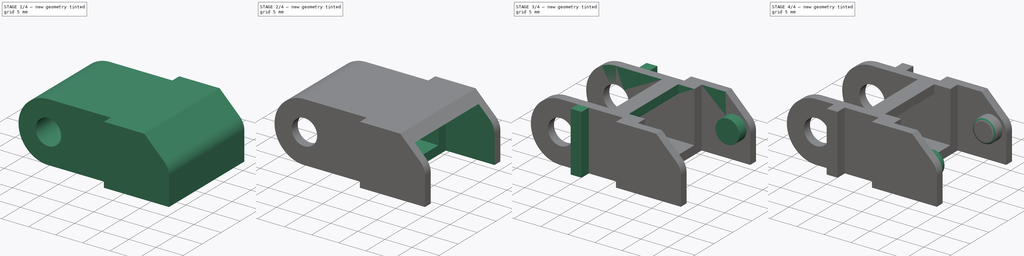
[diagram: build sequence overview — one tinted view per stage of 4, left to right]
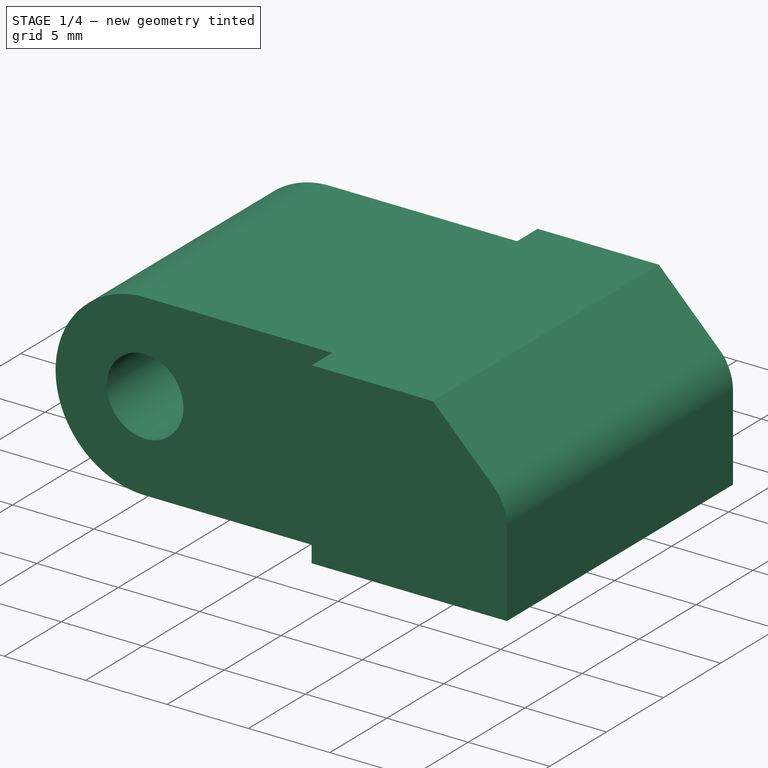
[diagram: stage 1 of 4 — iso view after this stage's code; geometry added in this stage tinted green]
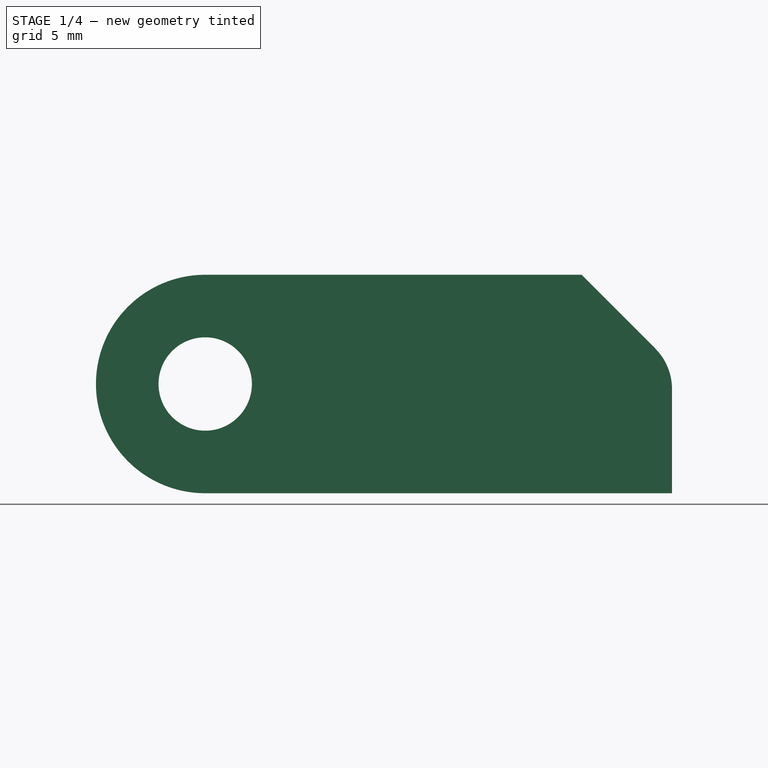
[diagram: stage 1 of 4 — front view after this stage's code; geometry added in this stage tinted green]
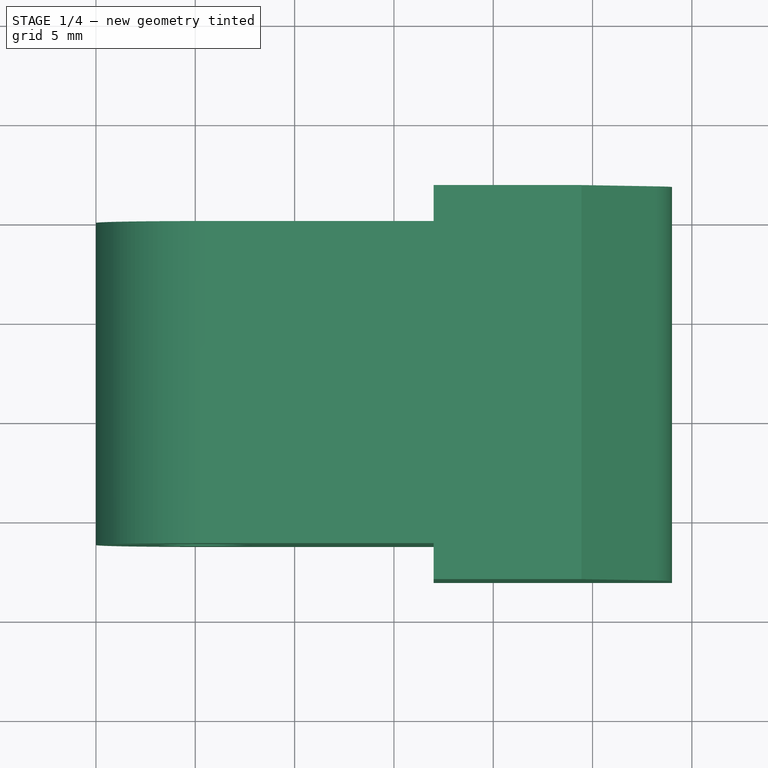
[diagram: stage 1 of 4 — top view after this stage's code; geometry added in this stage tinted green]
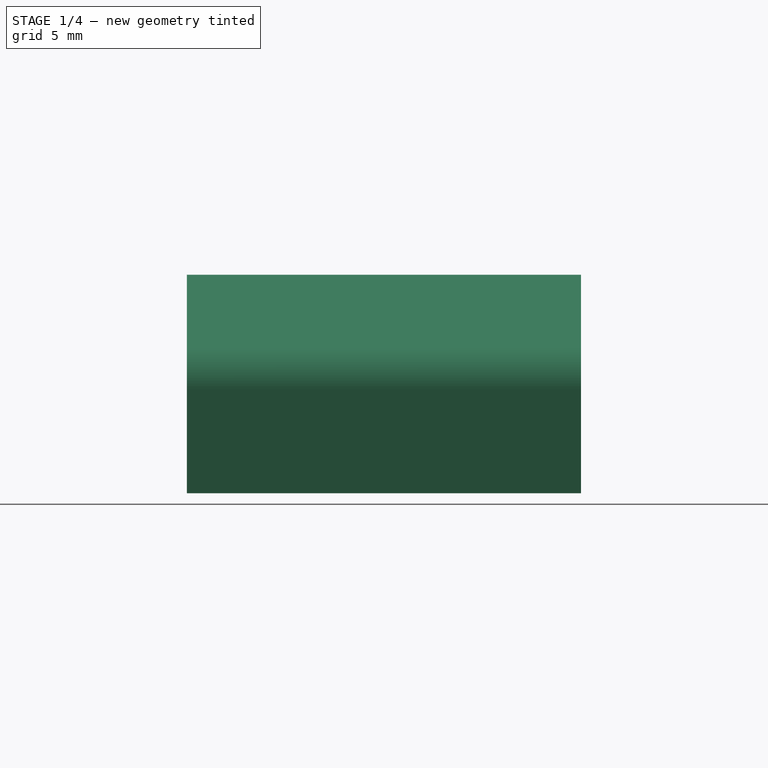
[diagram: stage 1 of 4 — right view after this stage's code; geometry added in this stage tinted green]
FCSTD DOCUMENT  (FreeCAD 0.17R13528 (Git))
Label: CableChain3
License: All rights reserved
LicenseURL: http://en.wikipedia.org/wiki/All_rights_reserved
objects: Sketcher::SketchObject×8, PartDesign::Pad×5, PartDesign::Pocket×3, Spreadsheet::Sheet×1, PartDesign::Fillet×1, PartDesign::Body×1, App::Part×1
note: 26 computed .brp shape members not serialized (recipe doc carries the construction recipe); baked Part::Feature solids carry a one-line shape summary decoded from their .brp

FEATURE [Spreadsheet::Sheet] Spreadsheet
  cells = B2=MainBodyLength; C2(MainBodyLength)==20mm; B3=Height; C3(Height)==11mm; B4=ChannelWidth; C4(ChannelWidth)==13mm; B5=WallThickness; C5(WallThickness)==1.6100000000000001mm; B6=HingeRadius; C6(HingeRadius)==2.2000000000000002mm; B7=GrooveFiletRadius; C7(GrooveFiletRadius)==0.59999999999999998mm; B8=HingeOverlap; C8(HingeOverlap)==3mm; B9=Tolerance; C9(Tolerance)==0.29999999999999999mm; B10=Separation; C10(Separation)==0.20000000000000001mm; B11=HingeBlockDistance; C11(HingeBlockDistance)==1mm; B12=LowerBridgeWidth; C12(LowerBridgeWidth)==6mm; B13=UpperBridgeWidth; C13(UpperBridgeWidth)==3mm; B15=HingeBlockOffset; C15(HingeBlockOffset)==HingeRadius + HingeBlockDistance
FEATURE [Sketcher::SketchObject] Sketch  label="MainBody"
  MapMode = 5
  Placement = pos=(0,0,0) rot=(1,0,0;1.5708rad)
  expr: Constraints[17] = Spreadsheet.HingeRadius + Spreadsheet.Tolerance / 2
  expr: Constraints[14] = Spreadsheet.Height
  expr: Constraints.Length = Spreadsheet.MainBodyLength
  sketch-geometry (6):
    g0: LineSegment StartX=20 StartY=0 StartZ=0 EndX=20 EndY=11 EndZ=0
    g1: LineSegment StartX=20 StartY=11 StartZ=0 EndX=5.5 EndY=11 EndZ=0
    g2: LineSegment StartX=20 StartY=0 StartZ=0 EndX=5.5 EndY=0 EndZ=0
    g3: ArcOfCircle CenterX=5.5 CenterY=5.5 CenterZ=0 NormalX=0 NormalY=0 NormalZ=1 AngleXU=0 Radius=5.5 StartAngle=1.5708 EndAngle=4.71239
    g4: LineSegment [constr] StartX=20 StartY=5.5 StartZ=0 EndX=0 EndY=5.5 EndZ=0
    g5: Circle CenterX=5.5 CenterY=5.5 CenterZ=0 NormalX=0 NormalY=0 NormalZ=1 AngleXU=0 Radius=2.35
  constraints (19):
    c: Vertical(g0)
    c: Horizontal(g1)
    c: Coincident(g2,g0)
    c: Horizontal(g2)
    c: Coincident(g3,g1)
    c: Coincident(g3,g2)
    c: PointOnObject(g4,g3)
    c: Horizontal(g4)
    c: DistanceX(g4,g0) = 20  'Length'
    c: PointOnObject(g4,g-2)
    c: PointOnObject(g3,g4)
    c: PointOnObject(g2,g-1)
    c: Tangent(g1,g3)
    c: Tangent(g3,g2)
    c: DistanceY(g2,g1) = 11
    c: PointOnObject(g4,g0)
    c: Coincident(g5,g3)
    c: Radius(g5) = 2.35
    c: Coincident(g1,g0)
FEATURE [PartDesign::Pad] Pad  label="MainBody_"
  Length = 16.22
  Length2 = 100
  Placement = pos=(0,0,0) rot=(1,0,0;1.5708rad)
  Profile = -> Sketch
  Type = 0
  expr: Length = Spreadsheet.ChannelWidth + Spreadsheet.WallThickness * 2
FEATURE [Sketcher::SketchObject] Sketch009  label="GrooveBase"
  MapMode = 5
  Placement = pos=(0,1.81,0) rot=(1,0,0;1.5708rad)
  expr: Constraints[27] = Spreadsheet.Height / 2 + Spreadsheet.Tolerance * 2
  expr: Constraints[24] = Spreadsheet.HingeBlockOffset - Spreadsheet.Tolerance
  expr: Constraints[12] = Spreadsheet.MainBodyLength
  expr: Constraints[16] = Spreadsheet.Height / 2
  expr: Constraints[13] = Spreadsheet.HingeOverlap
  expr: Placement.Base.y = Spreadsheet.WallThickness + Spreadsheet.Separation
  expr: Constraints[4] = Spreadsheet.Height
  sketch-geometry (8):
    g0: LineSegment StartX=17 StartY=0 StartZ=0 EndX=29 EndY=0 EndZ=0
    g1: LineSegment StartX=17 StartY=11 StartZ=0 EndX=17 EndY=0 EndZ=0
    g2: LineSegment StartX=17 StartY=11 StartZ=0 EndX=24.4437 EndY=11 EndZ=0
    g3: LineSegment StartX=24.4437 StartY=11 StartZ=0 EndX=28.1506 EndY=7.29304 EndZ=0
    g4: LineSegment [constr] StartX=20 StartY=11 StartZ=0 EndX=20 EndY=0 EndZ=0
    g5: LineSegment [constr] StartX=0 StartY=5.5 StartZ=0 EndX=29 EndY=5.5 EndZ=0
    g6: LineSegment StartX=29 StartY=0 StartZ=0 EndX=29 EndY=5.24243 EndZ=0
    g7: ArcOfCircle CenterX=26.1 CenterY=5.24243 CenterZ=0 NormalX=0 NormalY=0 NormalZ=1 AngleXU=0 Radius=2.9 StartAngle=0 EndAngle=0.785398
  constraints (28):
    c: Coincident(g1,g0)
    c: Horizontal(g0)
    c: Vertical(g1)
    c: PointOnObject(g0,g-1)
    c: DistanceY(g1,g1) = 11
    c: Coincident(g2,g1)
    c: Horizontal(g2)
    c: Coincident(g3,g2)
    c: DistanceX(g-1,g0) = 29  'TotalLength'
    c: PointOnObject(g4,g2)
    c: PointOnObject(g4,g0)
    c: Vertical(g4)
    c: DistanceX(g-1,g4) = 20
    c: DistanceX(g0,g4) = 3
    c: PointOnObject(g5,g-2)
    c: Horizontal(g5)
    c: DistanceY(g-1,g5) = 5.5
    c: Angle(g3,g5) = 0.785398
    c: Coincident(g6,g0)
    c: Vertical(g6)
    c: Coincident(g7,g3)
    c: Coincident(g7,g6)
    c: Tangent(g6,g7) = -1.5708
    c: Tangent(g3,g7) = 1.5708
    c: Radius(g7) = 2.9
    c: Equal(g6,g3)
    c: PointOnObject(g5,g6)
    c: DistanceX(g4,g7) = 6.1
FEATURE [PartDesign::Pad] Pad001  label="GrooveBasePad"
  BaseFeature = -> Pad
  Length = 19.84
  Length2 = 100
  Placement = pos=(0,0,0) rot=(1,0,0;1.5708rad)
  Profile = -> Sketch009
  Refine = true
  Type = 0
  expr: Length = (Spreadsheet.WallThickness + Spreadsheet.Separation) * 2 + MainBody_.Length
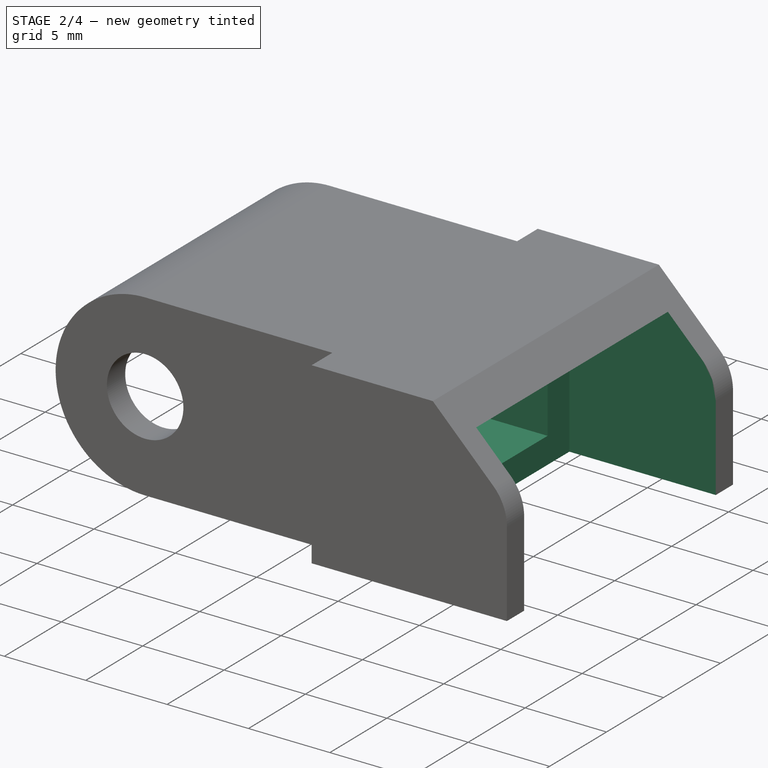
[diagram: stage 2 of 4 — iso view after this stage's code; geometry added in this stage tinted green]
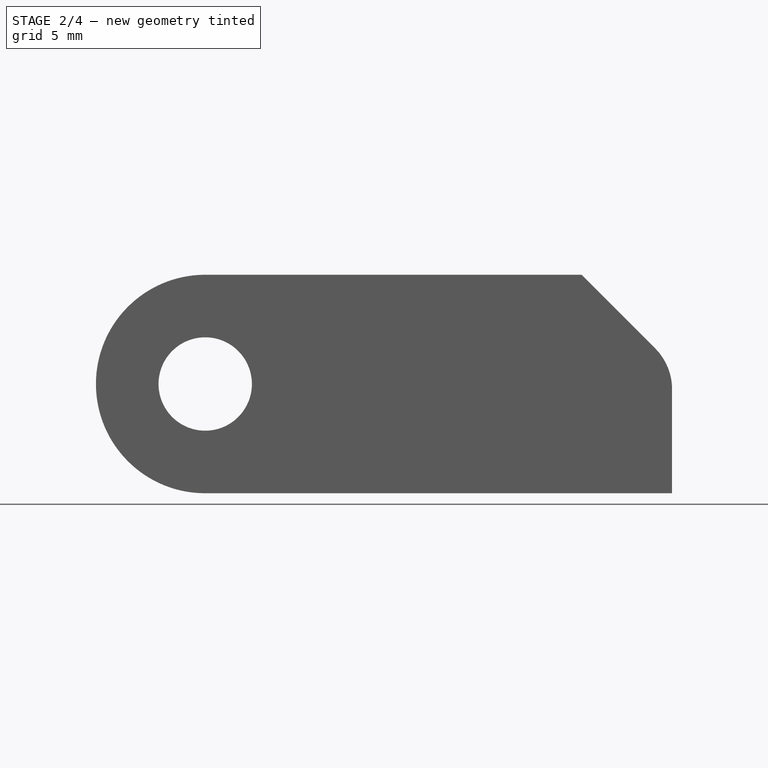
[diagram: stage 2 of 4 — front view after this stage's code; geometry added in this stage tinted green]
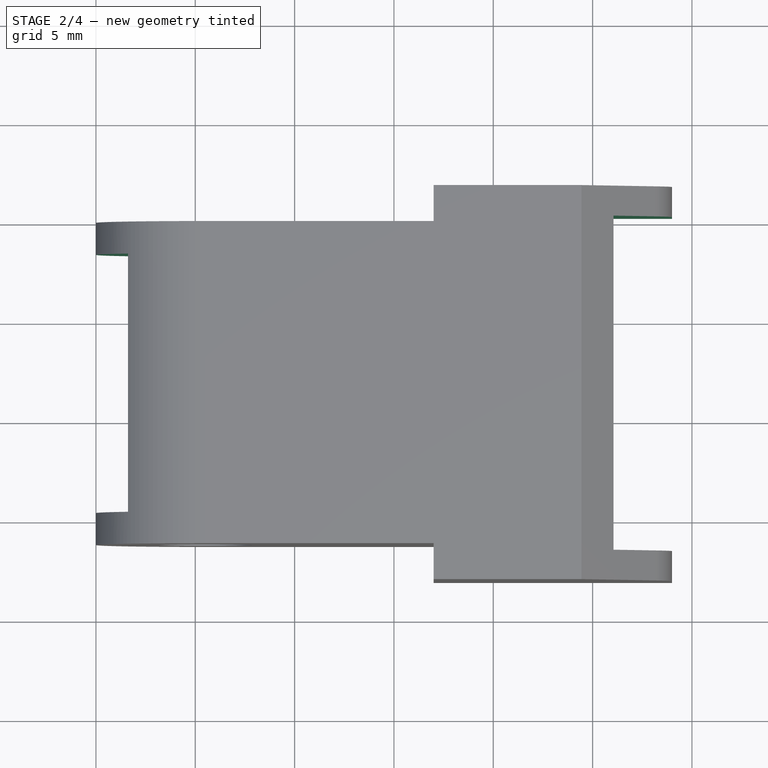
[diagram: stage 2 of 4 — top view after this stage's code; geometry added in this stage tinted green]
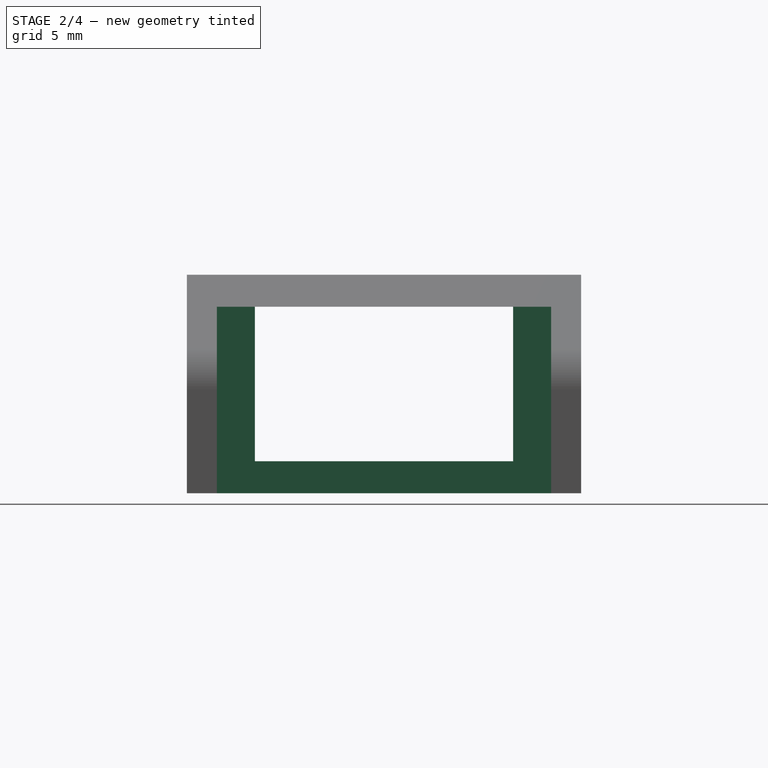
[diagram: stage 2 of 4 — right view after this stage's code; geometry added in this stage tinted green]
FEATURE [Sketcher::SketchObject] Sketch010  label="BottomCut"
  AttachmentOffset = pos=(0,0,1.61) rot=(0,0,1;0rad)
  MapMode = 5
  Placement = pos=(0,0,1.61) rot=(0,0,1;0rad)
  Support = -> [XY_Plane001]
  expr: Constraints[23] = Spreadsheet.Tolerance
  expr: Constraints[32] = Spreadsheet.LowerBridgeWidth
  expr: Constraints[3] = MainBody.Constraints.Length
  expr: Constraints[4] = Spreadsheet.WallThickness
  expr: AttachmentOffset.Base.z = Spreadsheet.WallThickness
  expr: Constraints[16] = Sketch009.Constraints.TotalLength
  expr: Constraints[7] = MainBody_.Length
  sketch-geometry (14):
    g0: LineSegment StartX=20 StartY=-1.61 StartZ=0 EndX=20 EndY=-14.61 EndZ=0
    g1: LineSegment StartX=0 StartY=-14.61 StartZ=0 EndX=0 EndY=-1.61 EndZ=0
    g2: LineSegment [constr] StartX=0 StartY=-16.22 StartZ=0 EndX=20 EndY=-16.22 EndZ=0
    g3: LineSegment [constr] StartX=0 StartY=-8.11 StartZ=0 EndX=29 EndY=-8.11 EndZ=0
    g4: LineSegment StartX=20 StartY=0.3 StartZ=0 EndX=29 EndY=0.3 EndZ=0
    g5: LineSegment StartX=29 StartY=0.3 StartZ=0 EndX=29 EndY=-16.52 EndZ=0
    g6: LineSegment StartX=29 StartY=-16.52 StartZ=0 EndX=20 EndY=-16.52 EndZ=0
    g7: LineSegment StartX=20 StartY=-1.61 StartZ=0 EndX=20 EndY=0.3 EndZ=0
    g8: LineSegment StartX=20 StartY=-16.52 StartZ=0 EndX=20 EndY=-14.61 EndZ=0
    g9: LineSegment [constr] StartX=20 StartY=-1.61 StartZ=0 EndX=14 EndY=-1.61 EndZ=0
    g10: LineSegment StartX=14 StartY=-1.61 StartZ=0 EndX=14 EndY=-14.61 EndZ=0
    g11: LineSegment [constr] StartX=14 StartY=-14.61 StartZ=0 EndX=20 EndY=-14.61 EndZ=0
    g12: LineSegment StartX=0 StartY=-1.61 StartZ=0 EndX=14 EndY=-1.61 EndZ=0
    g13: LineSegment StartX=0 StartY=-14.61 StartZ=0 EndX=14 EndY=-14.61 EndZ=0
  constraints (41):
    c: Vertical(g0)
    c: Vertical(g1)
    c: PointOnObject(g1,g-2)
    c: DistanceX(g1,g0) = 20
    c: DistanceY(g1,g-1) = 1.61
    c: PointOnObject(g2,g-2)
    c: Horizontal(g2)
    c: DistanceY(g2,g-1) = 16.22
    c: PointOnObject(g3,g1)
    c: Symmetric(g2,g-1,g3)
    c: Symmetric(g1,g1,g3)
    c: Coincident(g4,g5)
    c: Coincident(g5,g6)
    c: Horizontal(g4)
    c: Horizontal(g6)
    c: Vertical(g5)
    c: DistanceX(g3,g3) = 29
    c: Coincident(g7,g4)
    c: Vertical(g7)
    c: PointOnObject(g3,g5)
    c: Coincident(g8,g6)
    c: Coincident(g8,g0)
    c: Vertical(g8)
    c: DistanceY(g-1,g4) = 0.3
    c: Equal(g7,g8)
    c: Coincident(g0,g9)
    c: Horizontal(g9)
    c: Coincident(g9,g10)
    c: Vertical(g10)
    c: Coincident(g10,g11)
    c: Coincident(g11,g0)
    c: Horizontal(g11)
    c: DistanceX(g11,g11) = 6
    c: Coincident(g12,g1)
    c: Coincident(g12,g9)
    c: Horizontal(g12)
    c: Coincident(g13,g1)
    c: Coincident(g13,g10)
    c: Horizontal(g13)
    c: Coincident(g0,g7)
    c: PointOnObject(g2,g8)
FEATURE [PartDesign::Pocket] Pocket  label="BottomCut_"
  BaseFeature = -> Pad001
  Length = 5
  Length2 = 100
  Placement = pos=(0,0,0) rot=(1,0,0;1.5708rad)
  Profile = -> Sketch010
  Type = 1
FEATURE [Sketcher::SketchObject] Sketch011  label="MiddleCut"
  AttachmentOffset = pos=(0,0,9.39) rot=(0,0,1;0rad)
  MapMode = 5
  Placement = pos=(0,0,9.39) rot=(0,0,1;0rad)
  Support = -> [XY_Plane001]
  expr: Constraints[23] = Spreadsheet.Tolerance
  expr: Constraints[32] = Spreadsheet.LowerBridgeWidth
  expr: Constraints[3] = MainBody.Constraints.Length
  expr: Constraints[4] = Spreadsheet.WallThickness
  expr: AttachmentOffset.Base.z = Spreadsheet.Height - Spreadsheet.WallThickness
  expr: Constraints[16] = Sketch009.Constraints.TotalLength
  expr: Constraints[7] = MainBody_.Length
  sketch-geometry (14):
    g0: LineSegment [constr] StartX=20 StartY=-1.61 StartZ=0 EndX=20 EndY=-14.61 EndZ=0
    g1: LineSegment StartX=0 StartY=-14.61 StartZ=0 EndX=0 EndY=-1.61 EndZ=0
    g2: LineSegment [constr] StartX=0 StartY=-16.22 StartZ=0 EndX=20 EndY=-16.22 EndZ=0
    g3: LineSegment [constr] StartX=0 StartY=-8.11 StartZ=0 EndX=29 EndY=-8.11 EndZ=0
    g4: LineSegment StartX=20 StartY=0.3 StartZ=0 EndX=29 EndY=0.3 EndZ=0
    g5: LineSegment StartX=29 StartY=0.3 StartZ=0 EndX=29 EndY=-16.52 EndZ=0
    g6: LineSegment StartX=29 StartY=-16.52 StartZ=0 EndX=20 EndY=-16.52 EndZ=0
    g7: LineSegment StartX=20 StartY=-1.61 StartZ=0 EndX=20 EndY=0.3 EndZ=0
    g8: LineSegment StartX=20 StartY=-16.52 StartZ=0 EndX=20 EndY=-14.61 EndZ=0
    g9: LineSegment StartX=20 StartY=-1.61 StartZ=0 EndX=14 EndY=-1.61 EndZ=0
    g10: LineSegment [constr] StartX=14 StartY=-1.61 StartZ=0 EndX=14 EndY=-14.61 EndZ=0
    g11: LineSegment StartX=14 StartY=-14.61 StartZ=0 EndX=20 EndY=-14.61 EndZ=0
    g12: LineSegment StartX=0 StartY=-1.61 StartZ=0 EndX=14 EndY=-1.61 EndZ=0
    g13: LineSegment StartX=0 StartY=-14.61 StartZ=0 EndX=14 EndY=-14.61 EndZ=0
  constraints (42):
    c: Vertical(g0)
    c: Vertical(g1)
    c: PointOnObject(g1,g-2)
    c: DistanceX(g1,g0) = 20
    c: DistanceY(g1,g-1) = 1.61
    c: PointOnObject(g2,g-2)
    c: Horizontal(g2)
    c: DistanceY(g2,g-1) = 16.22
    c: PointOnObject(g3,g1)
    c: Symmetric(g2,g-1,g3)
    c: Symmetric(g1,g1,g3)
    c: Coincident(g4,g5)
    c: Coincident(g5,g6)
    c: Horizontal(g4)
    c: Horizontal(g6)
    c: Vertical(g5)
    c: DistanceX(g3,g3) = 29
    c: Coincident(g7,g4)
    c: Vertical(g7)
    c: PointOnObject(g3,g5)
    c: Coincident(g8,g6)
    c: Coincident(g8,g0)
    c: Vertical(g8)
    c: DistanceY(g-1,g4) = 0.3
    c: Equal(g7,g8)
    c: Coincident(g0,g9)
    c: Horizontal(g9)
    c: Coincident(g9,g10)
    c: Vertical(g10)
    c: Coincident(g10,g11)
    c: Coincident(g11,g0)
    c: Horizontal(g11)
    c: DistanceX(g11,g11) = 6
    c: Coincident(g12,g1)
    c: Coincident(g12,g9)
    c: Horizontal(g12)
    c: Coincident(g13,g1)
    c: Coincident(g13,g10)
    c: Horizontal(g13)
    c: Coincident(g0,g7)
    c: PointOnObject(g2,g8)
    c: DistanceY(g5,g5) = 16.82
FEATURE [PartDesign::Pocket] Pocket001  label="MiddleCut_"
  BaseFeature = -> Pocket
  Length = 7.78
  Length2 = 100
  Placement = pos=(0,0,0) rot=(1,0,0;1.5708rad)
  Profile = -> Sketch011
  Type = 0
  expr: Length = MiddleCut.Placement.Base.z - BottomCut.Placement.Base.z
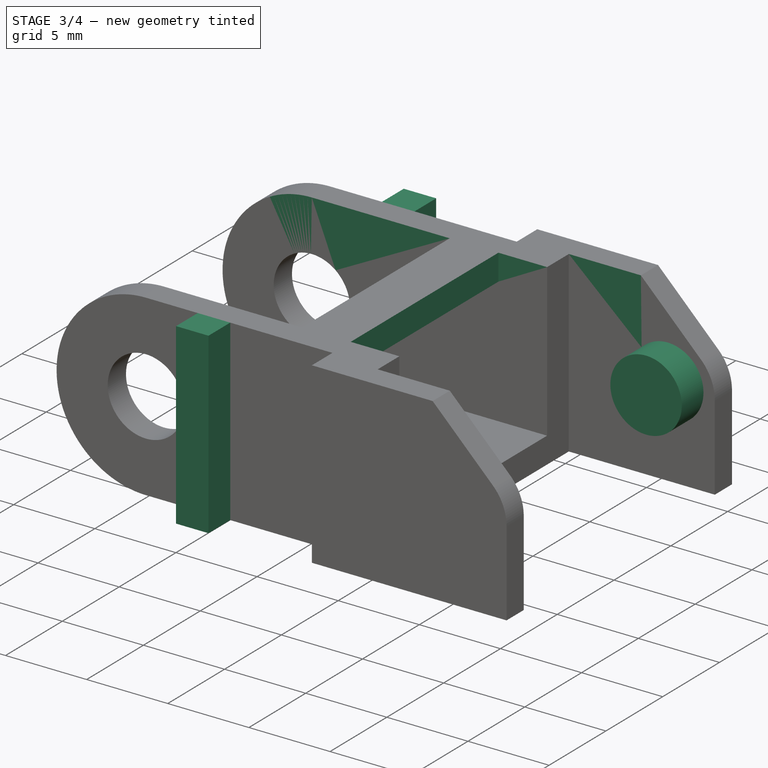
[diagram: stage 3 of 4 — iso view after this stage's code; geometry added in this stage tinted green]
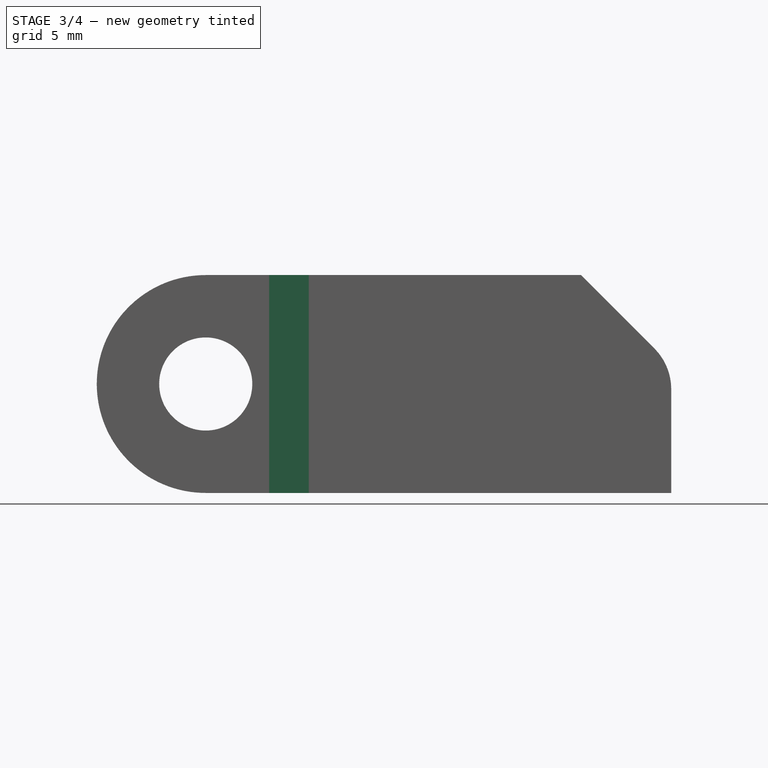
[diagram: stage 3 of 4 — front view after this stage's code; geometry added in this stage tinted green]
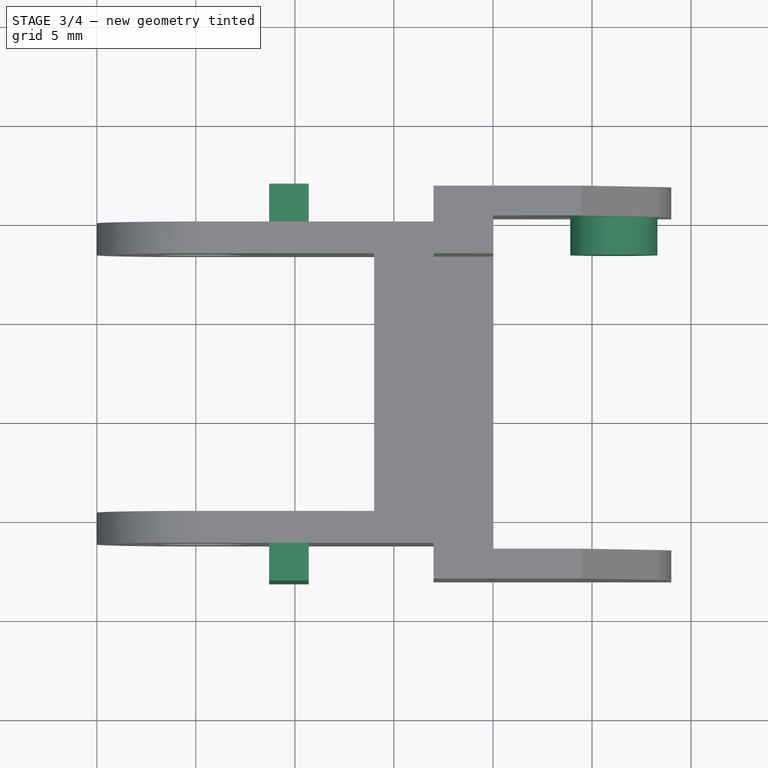
[diagram: stage 3 of 4 — top view after this stage's code; geometry added in this stage tinted green]
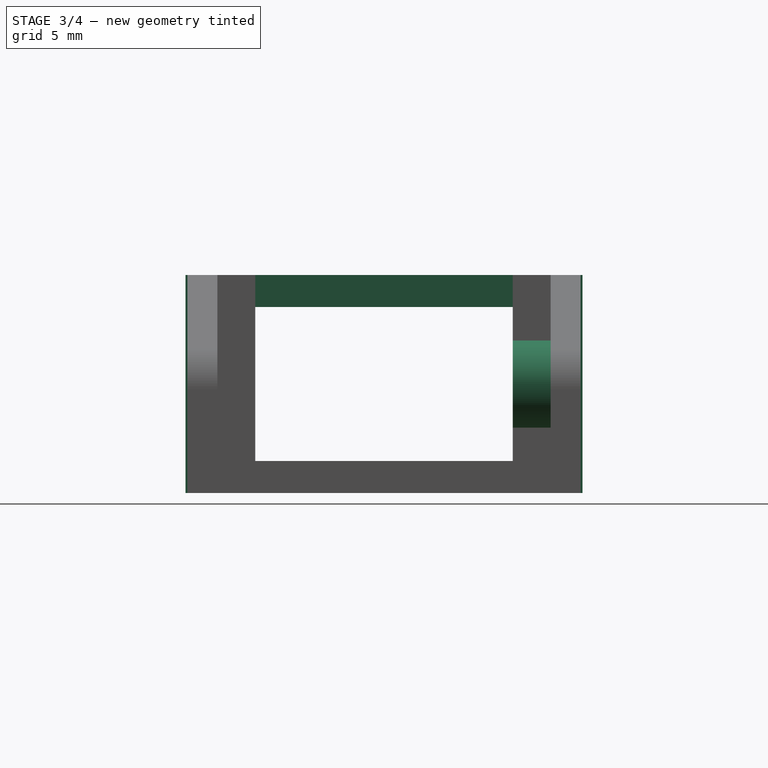
[diagram: stage 3 of 4 — right view after this stage's code; geometry added in this stage tinted green]
FEATURE [Sketcher::SketchObject] Sketch012  label="TopCut"
  AttachmentOffset = pos=(0,0,11) rot=(0,0,1;0rad)
  MapMode = 5
  Placement = pos=(0,0,11) rot=(0,0,1;0rad)
  Support = -> [XY_Plane001]
  expr: Constraints[23] = Spreadsheet.Tolerance
  expr: Constraints[48] = Spreadsheet.UpperBridgeWidth
  expr: AttachmentOffset.Base.z = Spreadsheet.Height
  expr: Constraints[16] = Sketch009.Constraints.TotalLength
  expr: Constraints[3] = MainBody.Constraints.Length
  expr: Constraints[26] = Spreadsheet.LowerBridgeWidth
  expr: Constraints[4] = Spreadsheet.WallThickness
  expr: Constraints[7] = MainBody_.Length
  sketch-geometry (17):
    g0: LineSegment [constr] StartX=20 StartY=-1.61 StartZ=0 EndX=20 EndY=-14.61 EndZ=0
    g1: LineSegment StartX=0 StartY=-14.61 StartZ=0 EndX=0 EndY=-1.61 EndZ=0
    g2: LineSegment [constr] StartX=0 StartY=-16.22 StartZ=0 EndX=20 EndY=-16.22 EndZ=0
    g3: LineSegment [constr] StartX=0 StartY=-8.11 StartZ=0 EndX=29 EndY=-8.11 EndZ=0
    g4: LineSegment StartX=20 StartY=0.3 StartZ=0 EndX=29 EndY=0.3 EndZ=0
    g5: LineSegment StartX=29 StartY=0.3 StartZ=0 EndX=29 EndY=-16.52 EndZ=0
    g6: LineSegment StartX=29 StartY=-16.52 StartZ=0 EndX=20 EndY=-16.52 EndZ=0
    g7: LineSegment StartX=20 StartY=-1.61 StartZ=0 EndX=20 EndY=0.3 EndZ=0
    g8: LineSegment StartX=20 StartY=-16.52 StartZ=0 EndX=20 EndY=-14.61 EndZ=0
    g9: LineSegment StartX=14 StartY=-1.61 StartZ=0 EndX=14 EndY=-14.61 EndZ=0
    g10: LineSegment StartX=0 StartY=-1.61 StartZ=0 EndX=14 EndY=-1.61 EndZ=0
    g11: LineSegment StartX=0 StartY=-14.61 StartZ=0 EndX=14 EndY=-14.61 EndZ=0
    g12: LineSegment StartX=20 StartY=-1.61 StartZ=0 EndX=17 EndY=-1.61 EndZ=0
    g13: LineSegment StartX=17 StartY=-1.61 StartZ=0 EndX=17 EndY=-14.61 EndZ=0
    g14: LineSegment StartX=17 StartY=-14.61 StartZ=0 EndX=20 EndY=-14.61 EndZ=0
    g15: LineSegment [constr] StartX=14 StartY=-1.61 StartZ=0 EndX=17 EndY=-1.61 EndZ=0
    g16: LineSegment [constr] StartX=14 StartY=-14.61 StartZ=0 EndX=17 EndY=-14.61 EndZ=0
  constraints (49):
    c: Vertical(g0)
    c: Vertical(g1)
    c: PointOnObject(g1,g-2)
    c: DistanceX(g1,g0) = 20
    c: DistanceY(g1,g-1) = 1.61
    c: PointOnObject(g2,g-2)
    c: Horizontal(g2)
    c: DistanceY(g2,g-1) = 16.22
    c: PointOnObject(g3,g1)
    c: Symmetric(g2,g-1,g3)
    c: Symmetric(g1,g1,g3)
    c: Coincident(g4,g5)
    c: Coincident(g5,g6)
    c: Horizontal(g4)
    c: Horizontal(g6)
    c: Vertical(g5)
    c: DistanceX(g3,g3) = 29
    c: Coincident(g7,g4)
    c: Vertical(g7)
    c: PointOnObject(g3,g5)
    c: Coincident(g8,g6)
    c: Coincident(g8,g0)
    c: Vertical(g8)
    c: DistanceY(g-1,g4) = 0.3
    c: Equal(g7,g8)
    c: Vertical(g9)
    c: DistanceX(g9,g0) = 6
    c: Coincident(g10,g1)
    c: Horizontal(g10)
    c: Coincident(g11,g1)
    c: Coincident(g11,g9)
    c: Horizontal(g11)
    c: Coincident(g0,g7)
    c: PointOnObject(g2,g8)
    c: Coincident(g0,g12)
    c: Horizontal(g12)
    c: Coincident(g12,g13)
    c: Vertical(g13)
    c: Coincident(g13,g14)
    c: Coincident(g14,g0)
    c: Horizontal(g14)
    c: Coincident(g15,g9)
    c: Coincident(g15,g12)
    c: Horizontal(g15)
    c: Coincident(g16,g9)
    c: Coincident(g16,g13)
    c: Horizontal(g16)
    c: Coincident(g9,g10)
    c: DistanceX(g16,g16) = 3
FEATURE [PartDesign::Pocket] Pocket002  label="TopCut_"
  BaseFeature = -> Pocket001
  Length = 1.61
  Length2 = 100
  Placement = pos=(0,0,0) rot=(1,0,0;1.5708rad)
  Profile = -> Sketch012
  Type = 0
  expr: Length = TopCut.Placement.Base.z - MiddleCut.Placement.Base.z
FEATURE [Sketcher::SketchObject] Sketch013  label="HingeBlock"
  MapMode = 5
  Support = -> [XY_Plane001]
  expr: Constraints[26] = Spreadsheet.WallThickness + Spreadsheet.Tolerance
  expr: Constraints[20] = Sketch009.Constraints.TotalLength
  expr: Constraints[22] = MainBody_.Length / 2
  expr: Constraints[17] = Spreadsheet.Height / 2 + Spreadsheet.HingeBlockOffset
  sketch-geometry (9):
    g0: LineSegment StartX=8.7 StartY=0 StartZ=0 EndX=10.7 EndY=0 EndZ=0
    g1: LineSegment StartX=10.7 StartY=0 StartZ=0 EndX=10.7 EndY=1.91 EndZ=0
    g2: LineSegment StartX=10.7 StartY=1.91 StartZ=0 EndX=8.7 EndY=1.91 EndZ=0
    g3: LineSegment StartX=8.7 StartY=1.91 StartZ=0 EndX=8.7 EndY=0 EndZ=0
    g4: LineSegment StartX=8.7 StartY=-16.22 StartZ=0 EndX=10.7 EndY=-16.22 EndZ=0
    g5: LineSegment StartX=10.7 StartY=-16.22 StartZ=0 EndX=10.7 EndY=-18.13 EndZ=0
    g6: LineSegment StartX=10.7 StartY=-18.13 StartZ=0 EndX=8.7 EndY=-18.13 EndZ=0
    g7: LineSegment StartX=8.7 StartY=-18.13 StartZ=0 EndX=8.7 EndY=-16.22 EndZ=0
    g8: LineSegment [constr] StartX=0 StartY=-8.11 StartZ=0 EndX=29 EndY=-8.11 EndZ=0
  constraints (27):
    c: Coincident(g0,g1)
    c: Coincident(g1,g2)
    c: Coincident(g2,g3)
    c: Coincident(g3,g0)
    c: Horizontal(g0)
    c: Horizontal(g2)
    c: Vertical(g1)
    c: Vertical(g3)
    c: PointOnObject(g0,g-1)
    c: Coincident(g4,g5)
    c: Coincident(g5,g6)
    c: Coincident(g6,g7)
    c: Coincident(g7,g4)
    c: Horizontal(g4)
    c: Horizontal(g6)
    c: Vertical(g5)
    c: Vertical(g7)
    c: DistanceX(g-1,g2) = 8.7
    c: PointOnObject(g8,g-2)
    c: Horizontal(g8)
    c: DistanceX(g8,g8) = 29
    c: DistanceX(g2,g2) = 2
    c: DistanceY(g8,g-1) = 8.11
    c: Symmetric(g4,g0,g8)
    c: Equal(g0,g4)
    c: Equal(g3,g7)
    c: DistanceY(g1,g1) = 1.91
FEATURE [PartDesign::Pad] Pad002  label="HingeBlock_"
  BaseFeature = -> Pocket002
  Length = 11
  Length2 = 100
  Placement = pos=(0,0,0) rot=(1,0,0;1.5708rad)
  Profile = -> Sketch013
  Refine = true
  Type = 0
  expr: Length = Spreadsheet.Height
FEATURE [Sketcher::SketchObject] Sketch014  label="Hinge1"
  AttachmentOffset = pos=(0,0,-0.3) rot=(0,0,1;0rad)
  MapMode = 5
  Placement = pos=(0,0.3,0) rot=(1,0,0;1.5708rad)
  Support = -> [XZ_Plane001]
  expr: Constraints[6] = Spreadsheet.HingeBlockOffset - Spreadsheet.Tolerance
  expr: Constraints[5] = GrooveBase.Constraints.TotalLength
  expr: AttachmentOffset.Base.z = -Spreadsheet.Tolerance
  expr: Constraints[3] = Spreadsheet.Height / 2
  expr: Constraints[0] = Spreadsheet.HingeRadius
  sketch-geometry (2):
    g0: Circle CenterX=26.1 CenterY=5.5 CenterZ=0 NormalX=0 NormalY=0 NormalZ=1 AngleXU=0 Radius=2.2
    g1: LineSegment [constr] StartX=0 StartY=5.5 StartZ=0 EndX=29 EndY=5.5 EndZ=0
  constraints (7):
    c: Radius(g0) = 2.2
    c: PointOnObject(g1,g-2)
    c: Horizontal(g1)
    c: DistanceY(g-1,g1) = 5.5
    c: PointOnObject(g0,g1)
    c: DistanceX(g1,g1) = 29
    c: DistanceX(g0,g1) = 2.9
FEATURE [PartDesign::Pad] Pad003  label="Hinge1_"
  BaseFeature = -> Pad002
  Length = 1.91
  Length2 = 100
  Placement = pos=(0,0,0) rot=(1,0,0;1.5708rad)
  Profile = -> Sketch014
  Type = 0
  expr: Length = Spreadsheet.WallThickness + Spreadsheet.Tolerance
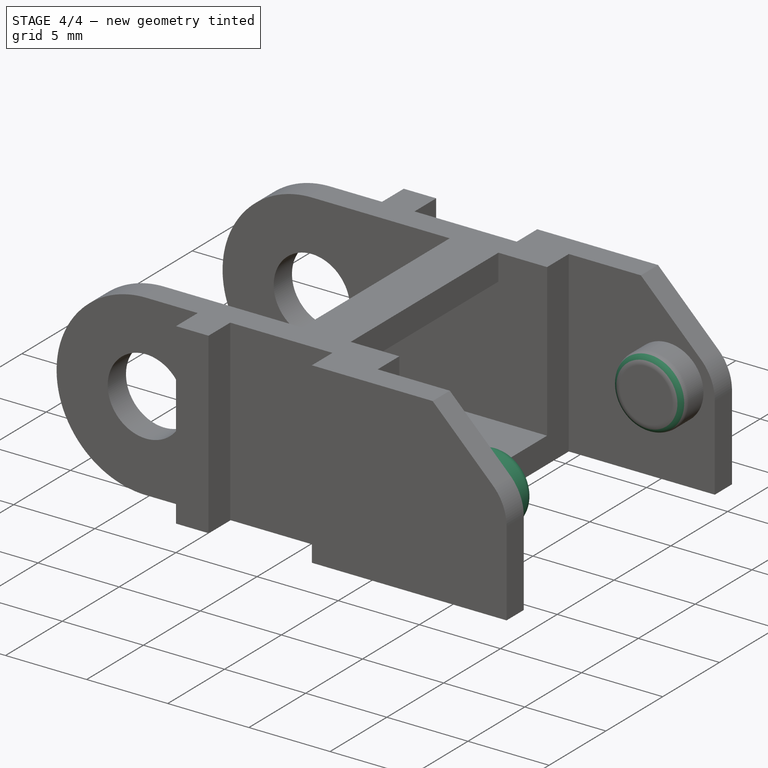
[diagram: stage 4 of 4 — iso view after this stage's code; geometry added in this stage tinted green]
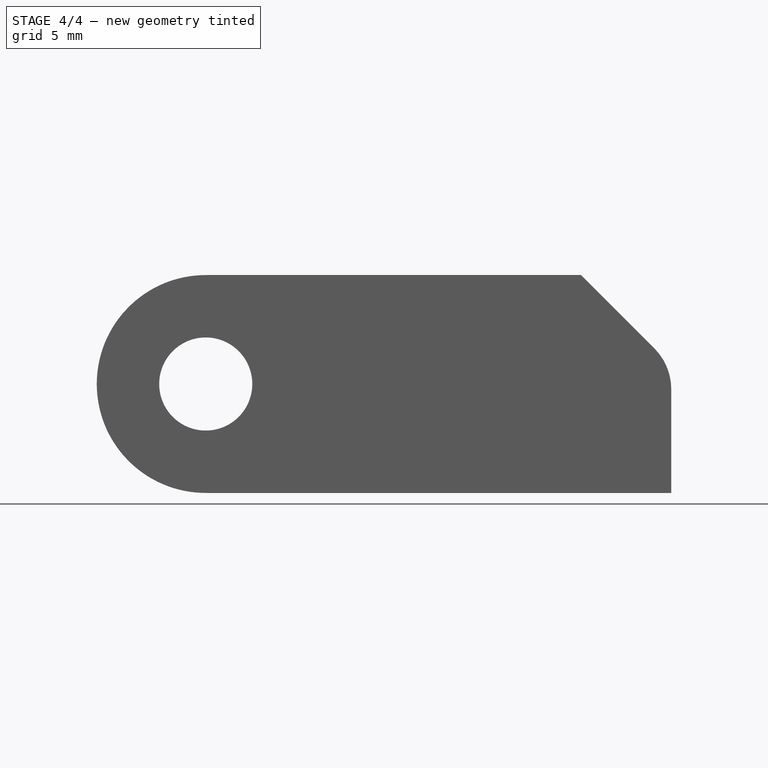
[diagram: stage 4 of 4 — front view after this stage's code; geometry added in this stage tinted green]
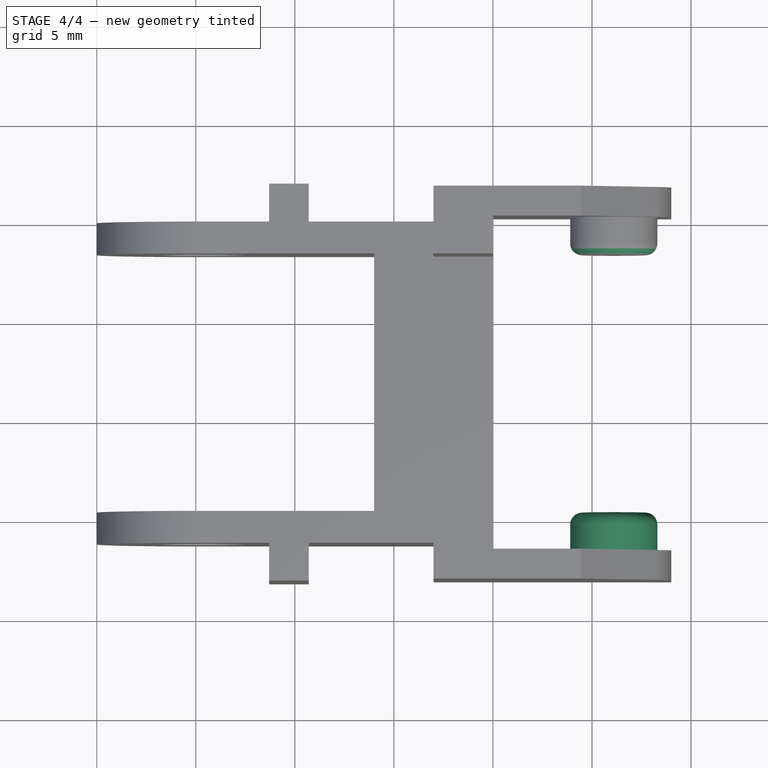
[diagram: stage 4 of 4 — top view after this stage's code; geometry added in this stage tinted green]
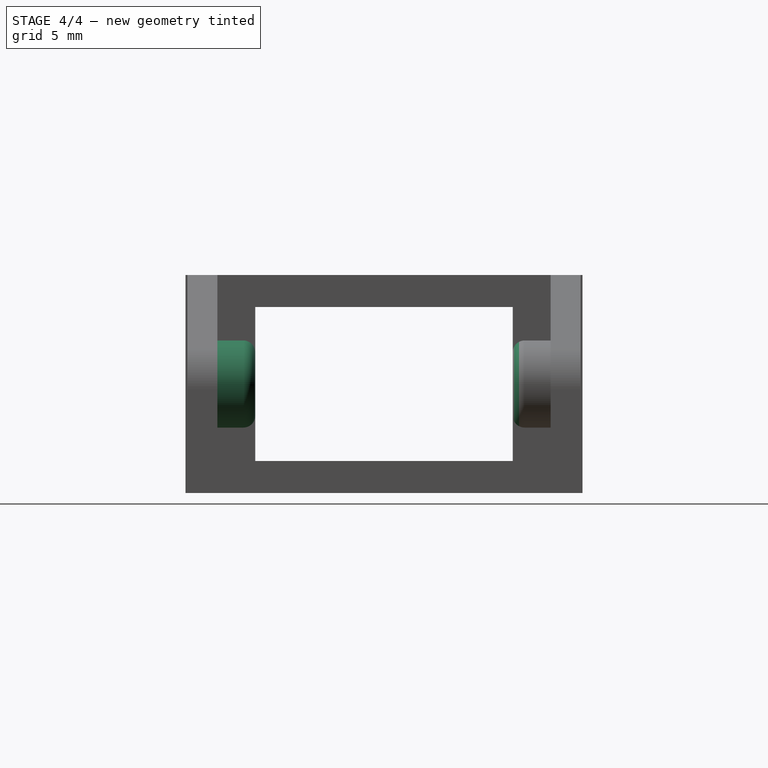
[diagram: stage 4 of 4 — right view after this stage's code; geometry added in this stage tinted green]
FEATURE [Sketcher::SketchObject] Sketch015  label="Hinge2"
  AttachmentOffset = pos=(0,0,16.52) rot=(0,0,1;0rad)
  MapMode = 5
  Placement = pos=(0,-16.52,-2e-12) rot=(1,0,0;1.5708rad)
  Support = -> [XZ_Plane001]
  expr: Constraints[6] = Spreadsheet.HingeBlockOffset - Spreadsheet.Tolerance
  expr: Constraints[5] = GrooveBase.Constraints.TotalLength
  expr: AttachmentOffset.Base.z = MainBody_.Length + Spreadsheet.Tolerance
  expr: Constraints[3] = Spreadsheet.Height / 2
  expr: Constraints[0] = Spreadsheet.HingeRadius
  sketch-geometry (2):
    g0: Circle CenterX=26.1 CenterY=5.5 CenterZ=0 NormalX=0 NormalY=0 NormalZ=1 AngleXU=0 Radius=2.2
    g1: LineSegment [constr] StartX=0 StartY=5.5 StartZ=0 EndX=29 EndY=5.5 EndZ=0
  constraints (7):
    c: Radius(g0) = 2.2
    c: PointOnObject(g1,g-2)
    c: Horizontal(g1)
    c: DistanceY(g-1,g1) = 5.5
    c: PointOnObject(g0,g1)
    c: DistanceX(g1,g1) = 29
    c: DistanceX(g0,g1) = 2.9
FEATURE [PartDesign::Pad] Pad004  label="Hinge2_"
  BaseFeature = -> Pad003
  Length = 1.91
  Length2 = 100
  Placement = pos=(0,0,0) rot=(1,0,0;1.5708rad)
  Profile = -> Sketch015
  Reversed = true
  Type = 0
  expr: Length = Hinge1_.Length
FEATURE [PartDesign::Fillet] Fillet
  Base = -> Pad004 [Edge116,Edge118]
  BaseFeature = -> Pad004
  Placement = pos=(0,0,0) rot=(1,0,0;1.5708rad)
  Radius = 0.6
  expr: Radius = Spreadsheet.GrooveFiletRadius
FEATURE [PartDesign::Body] Body
  Group = -> [Sketch,Pad,Sketch009,Pad001,Sketch010,Pocket,Sketch011,Pocket001,Sketch012,Pocket002,Sketch013,Pad002,Sketch014,Pad003,Sketch015,Pad004,Fillet]
  Origin = -> Origin001
  Tip = -> Fillet
FEATURE [App::Part] Part
  Group = -> [Body]
  License = CC BY 3.0
  LicenseURL = http://creativecommons.org/licenses/by/3.0/
  Origin = -> Origin
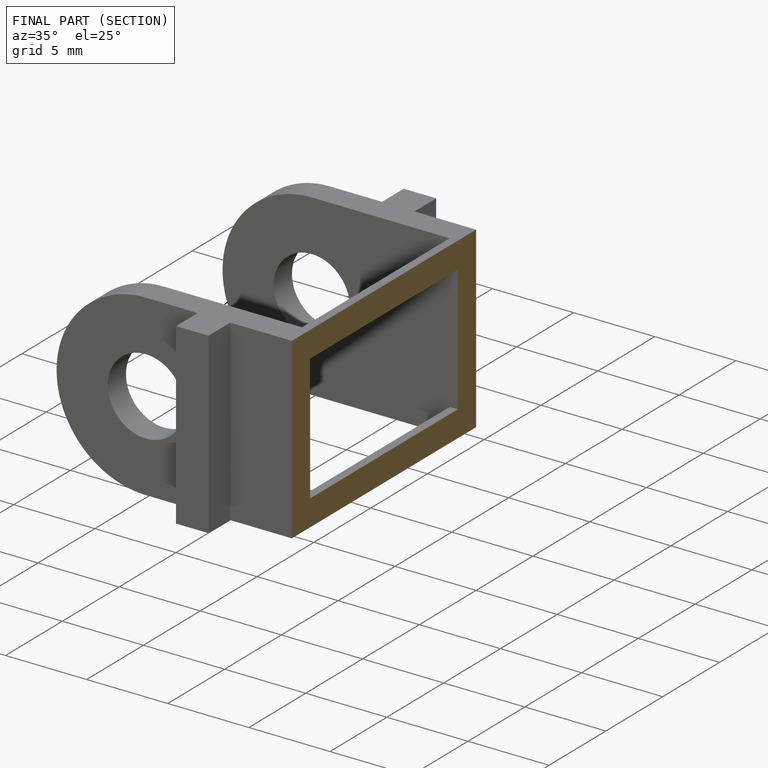
[diagram: finished part — half-section view (interior)]
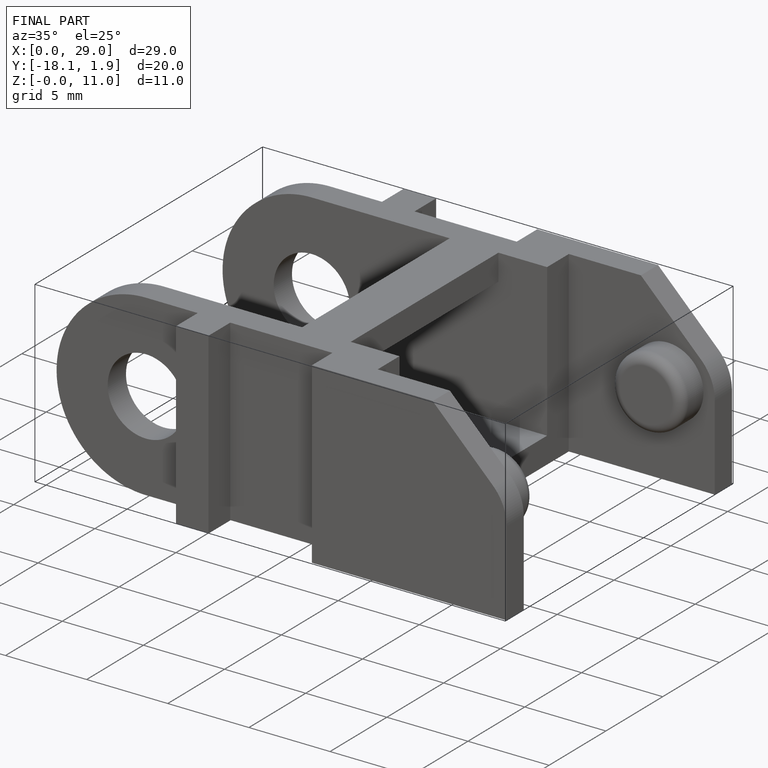
[diagram: finished part — iso view with bounding-box wireframe]
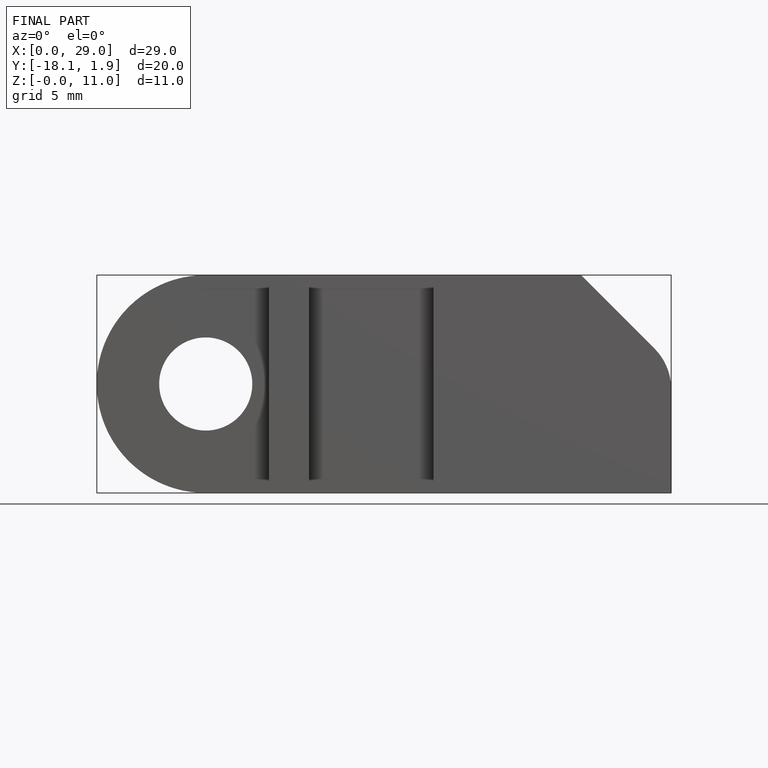
[diagram: finished part — front view with bounding-box wireframe]
